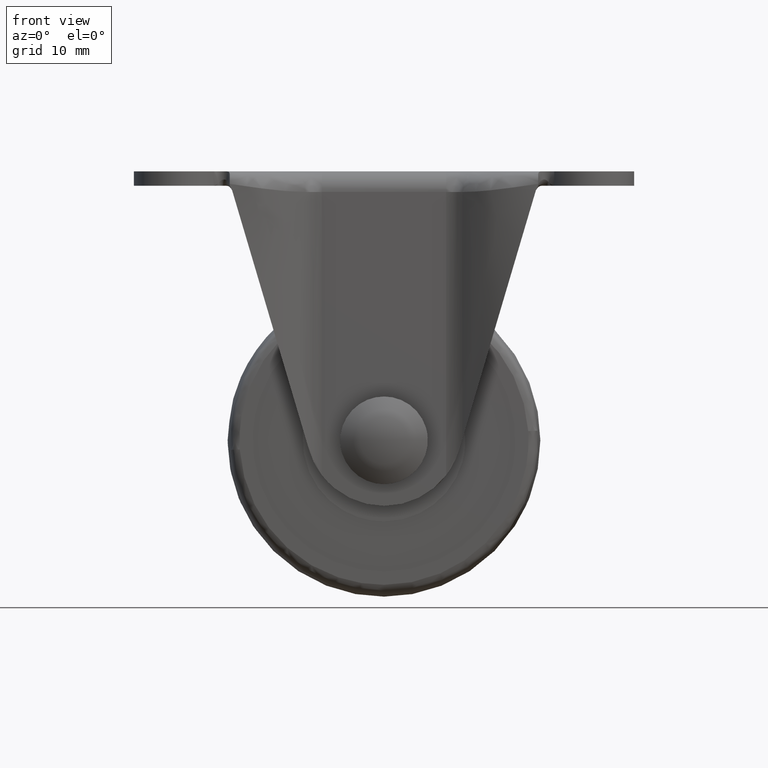
[diagram: clean part render]
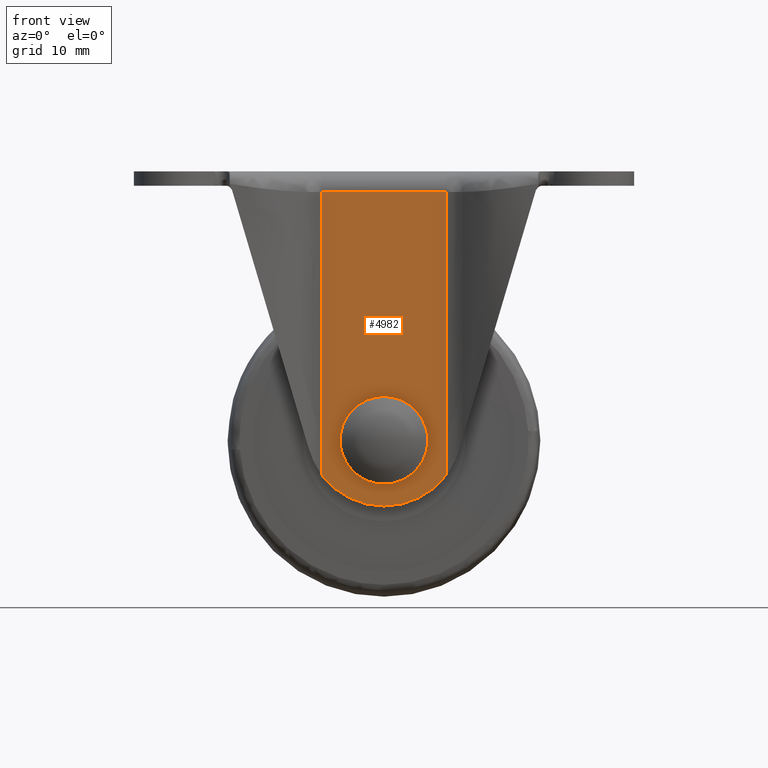
[diagram: same view with one face highlighted and labeled with its STEP entity id]
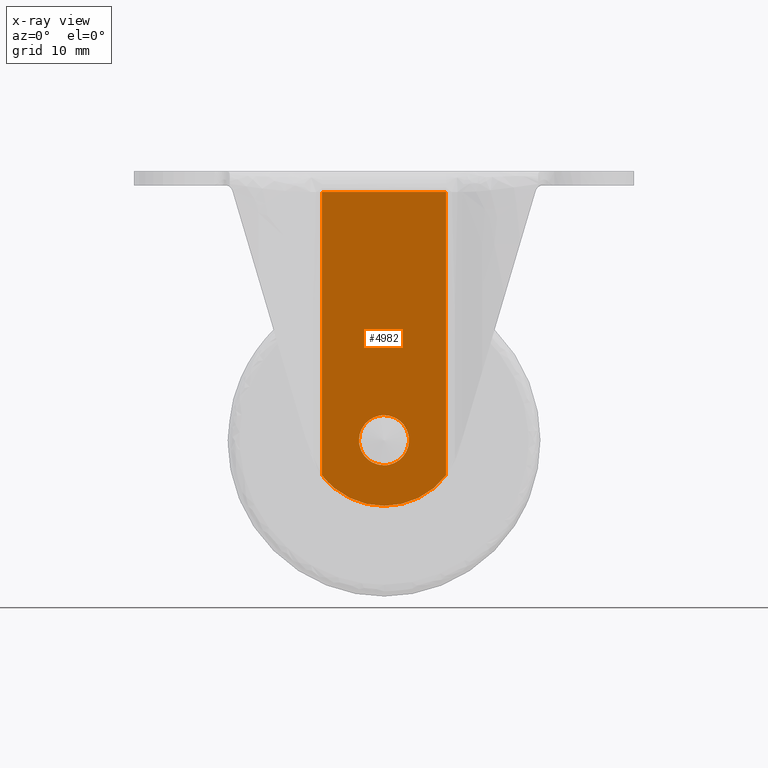
[diagram: x-ray of the same camera — body ghosted, the highlighted face saturated]
A machine part, front view. The second image highlights one B-rep face of the part: STEP entity #4982.
The next image is the same camera in x-ray: the body ghosted, the highlighted face saturated — about 0% of this face is hidden behind the body in this view.
In plain terms, the highlighted face is a freeform B-spline surface patch.
Its self-contained STEP definition (entity closure, byte-faithful):
#3187=CARTESIAN_POINT('',(0.0,-18.0,-38.999999999999993));
#3188=VERTEX_POINT('',#3187);
#3189=CARTESIAN_POINT('',(3.999847692254430,-18.0,-42.965093857748087));
#3190=VERTEX_POINT('',#3189);
#3191=CARTESIAN_POINT('',(0.0,-18.0,-38.999999999999993));
#3192=CARTESIAN_POINT('',(3.965244842123722,-18.000000000000011,-39.0));
#3193=CARTESIAN_POINT('',(3.999847692254430,-18.0,-42.965093857748087));
#3201=(BOUNDED_CURVE()B_SPLINE_CURVE(2,(#3191,#3192,#3193),.UNSPECIFIED.,.F.,.U.)B_SPLINE_CURVE_WITH_KNOTS((3,3),(0.0,0.248460105653633),.UNSPECIFIED.)CURVE()GEOMETRIC_REPRESENTATION_ITEM()RATIONAL_B_SPLINE_CURVE((1.0,0.708910879633508,0.996414028074069))REPRESENTATION_ITEM(''));
#3202=EDGE_CURVE('',#3188,#3190,#3201,.T.);
#3204=CARTESIAN_POINT('',(-3.999847692254430,-18.0,-43.034906142251913));
#3205=VERTEX_POINT('',#3204);
#3206=CARTESIAN_POINT('',(-3.999847692254430,-17.999999999999996,-43.034906142251920));
#3207=CARTESIAN_POINT('',(-4.0,-17.999999999999996,-43.017453403412020));
#3208=CARTESIAN_POINT('',(-4.0,-18.0,-43.0));
#3209=CARTESIAN_POINT('',(-4.000000000000000,-18.000000000000007,-38.999999999999993));
#3210=CARTESIAN_POINT('',(0.0,-18.0,-38.999999999999993));
#3218=(BOUNDED_CURVE()B_SPLINE_CURVE(2,(#3206,#3207,#3208,#3209,#3210),.UNSPECIFIED.,.F.,.U.)B_SPLINE_CURVE_WITH_KNOTS((3,2,3),(0.748460105653633,0.750000000000000,1.0),.UNSPECIFIED.)CURVE()GEOMETRIC_REPRESENTATION_ITEM()RATIONAL_B_SPLINE_CURVE((0.996414028074070,0.998195901553040,1.0,0.707106781186548,1.0))REPRESENTATION_ITEM(''));
#3219=EDGE_CURVE('',#3205,#3188,#3218,.T.);
#3286=CARTESIAN_POINT('',(0.0,-18.0,-47.0));
#3287=VERTEX_POINT('',#3286);
#3288=CARTESIAN_POINT('',(3.999847692254430,-18.0,-42.965093857748087));
#3289=CARTESIAN_POINT('',(4.000000000000000,-17.999999999999996,-42.982546596587973));
#3290=CARTESIAN_POINT('',(4.0,-18.0,-43.0));
#3291=CARTESIAN_POINT('',(4.000000000000000,-18.000000000000007,-47.000000000000007));
#3292=CARTESIAN_POINT('',(0.0,-18.0,-47.0));
#3300=(BOUNDED_CURVE()B_SPLINE_CURVE(2,(#3288,#3289,#3290,#3291,#3292),.UNSPECIFIED.,.F.,.U.)B_SPLINE_CURVE_WITH_KNOTS((3,2,3),(0.248460105653633,0.250000000000000,0.500000000000000),.UNSPECIFIED.)CURVE()GEOMETRIC_REPRESENTATION_ITEM()RATIONAL_B_SPLINE_CURVE((0.996414028074069,0.998195901553040,1.0,0.707106781186548,1.0))REPRESENTATION_ITEM(''));
#3301=EDGE_CURVE('',#3190,#3287,#3300,.T.);
#3335=CARTESIAN_POINT('',(0.0,-18.0,-47.0));
#3336=CARTESIAN_POINT('',(-3.965244842123724,-17.999999999999996,-47.000000000000007));
#3337=CARTESIAN_POINT('',(-3.999847692254430,-17.999999999999996,-43.034906142251920));
#3345=(BOUNDED_CURVE()B_SPLINE_CURVE(2,(#3335,#3336,#3337),.UNSPECIFIED.,.F.,.U.)B_SPLINE_CURVE_WITH_KNOTS((3,3),(0.500000000000000,0.748460105653633),.UNSPECIFIED.)CURVE()GEOMETRIC_REPRESENTATION_ITEM()RATIONAL_B_SPLINE_CURVE((1.0,0.708910879633508,0.996414028074070))REPRESENTATION_ITEM(''));
#3346=EDGE_CURVE('',#3287,#3205,#3345,.T.);
#3577=CARTESIAN_POINT('',(9.928237027016358,-18.0,-48.594742846746200));
#3578=VERTEX_POINT('',#3577);
#3596=CARTESIAN_POINT('',(-9.928238000000000,-18.0,-48.594740267560503));
#3597=VERTEX_POINT('',#3596);
#3598=CARTESIAN_POINT('',(9.928237027016358,-18.0,-48.594742846746200));
#3599=CARTESIAN_POINT('',(9.601514580022279,-18.000000000000050,-49.021876794768822));
#3600=CARTESIAN_POINT('',(8.853465439893274,-17.999999999999861,-49.879001439654317));
#3601=CARTESIAN_POINT('',(7.634291376916999,-18.000000000000231,-50.941895378168986));
#3602=CARTESIAN_POINT('',(6.264786997558306,-17.999999999999861,-51.854801648339937));
#3603=CARTESIAN_POINT('',(4.924804633890053,-18.0,-52.522831044284608));
#3604=CARTESIAN_POINT('',(3.260970136609405,-18.000000000000028,-53.112528875630730));
#3605=CARTESIAN_POINT('',(1.407858273212473,-17.999999999999961,-53.482767161968333));
#3606=CARTESIAN_POINT('',(-0.599998679171014,-18.000000000000149,-53.533105907570217));
#3607=CARTESIAN_POINT('',(-2.649982750884043,-17.999999999999581,-53.274560720552039));
#3608=CARTESIAN_POINT('',(-4.806969085784851,-18.000000000000892,-52.630074176604417));
#3609=CARTESIAN_POINT('',(-7.005426743952246,-17.999999999999879,-51.454170675321848));
#3610=CARTESIAN_POINT('',(-8.715702003915961,-17.999999999999829,-50.036920374988817));
#3611=CARTESIAN_POINT('',(-9.601515354885363,-18.000000000000242,-49.021861366061422));
#3612=CARTESIAN_POINT('',(-9.928238000000000,-18.0,-48.594740267560503));
#3613=B_SPLINE_CURVE_WITH_KNOTS('',3,(#3598,#3599,#3600,#3601,#3602,#3603,#3604,#3605,#3606,#3607,#3608,#3609,#3610,#3611,#3612),.UNSPECIFIED.,.F.,.U.,(4,1,1,1,1,1,1,1,1,1,1,1,4),(0.000000072596375,1.613297746478054,3.405842532659740,4.839902848008507,6.542837303745920,7.887263170038091,10.127974257128260,12.189350249349570,13.892290012888671,16.312258685689240,18.911484648742331,21.331450568999070,22.944724484981631),.UNSPECIFIED.);
#3614=EDGE_CURVE('',#3578,#3597,#3613,.T.);
#4598=CARTESIAN_POINT('',(9.928237027016358,-18.0,-3.300000000000000));
#4599=VERTEX_POINT('',#4598);
#4613=CARTESIAN_POINT('',(9.928237027016358,-18.0,-48.594742846746200));
#4614=CARTESIAN_POINT('',(9.928237027016358,-18.0,-3.300000000000000));
#4615=QUASI_UNIFORM_CURVE('',1,(#4613,#4614),.UNSPECIFIED.,.F.,.U.);
#4616=EDGE_CURVE('',#3578,#4599,#4615,.T.);
#4935=CARTESIAN_POINT('',(-9.928238000000000,-18.0,-3.300000000000000));
#4936=VERTEX_POINT('',#4935);
#4937=CARTESIAN_POINT('',(-9.928238000000000,-18.0,-48.594740267560503));
#4938=CARTESIAN_POINT('',(-9.928238000000000,-18.0,-3.300000000000000));
#4939=QUASI_UNIFORM_CURVE('',1,(#4937,#4938),.UNSPECIFIED.,.F.,.U.);
#4940=EDGE_CURVE('',#3597,#4936,#4939,.T.);
#4961=CARTESIAN_POINT('',(-10.920068889113770,-18.0,-56.007489864310386));
#4962=CARTESIAN_POINT('',(-10.920068889113770,-18.0,-0.792508752654883));
#4963=CARTESIAN_POINT('',(10.920068448722290,-18.0,-56.007489864310386));
#4964=CARTESIAN_POINT('',(10.920068448722290,-18.0,-0.792508752654883));
#4965=B_SPLINE_SURFACE_WITH_KNOTS('',1,1,((#4961,#4963),(#4962,#4964)),.UNSPECIFIED.,.F.,.F.,.U.,(2,2),(2,2),(0.0,55.214981111655497),(0.0,21.840137337836062),.UNSPECIFIED.);
#4966=ORIENTED_EDGE('',*,*,#4616,.T.);
#4967=CARTESIAN_POINT('',(9.928237027016358,-18.0,-3.300000000000000));
#4968=CARTESIAN_POINT('',(-9.928238000000000,-18.0,-3.300000000000000));
#4969=QUASI_UNIFORM_CURVE('',1,(#4967,#4968),.UNSPECIFIED.,.F.,.U.);
#4970=EDGE_CURVE('',#4599,#4936,#4969,.T.);
#4971=ORIENTED_EDGE('',*,*,#4970,.T.);
#4972=ORIENTED_EDGE('',*,*,#4940,.F.);
#4973=ORIENTED_EDGE('',*,*,#3614,.F.);
#4974=EDGE_LOOP('',(#4966,#4971,#4972,#4973));
#4975=FACE_OUTER_BOUND('',#4974,.T.);
#4976=ORIENTED_EDGE('',*,*,#3346,.T.);
#4977=ORIENTED_EDGE('',*,*,#3219,.T.);
#4978=ORIENTED_EDGE('',*,*,#3202,.T.);
#4979=ORIENTED_EDGE('',*,*,#3301,.T.);
#4980=EDGE_LOOP('',(#4976,#4977,#4978,#4979));
#4981=FACE_BOUND('',#4980,.T.);
#4982=ADVANCED_FACE('',(#4975,#4981),#4965,.F.);